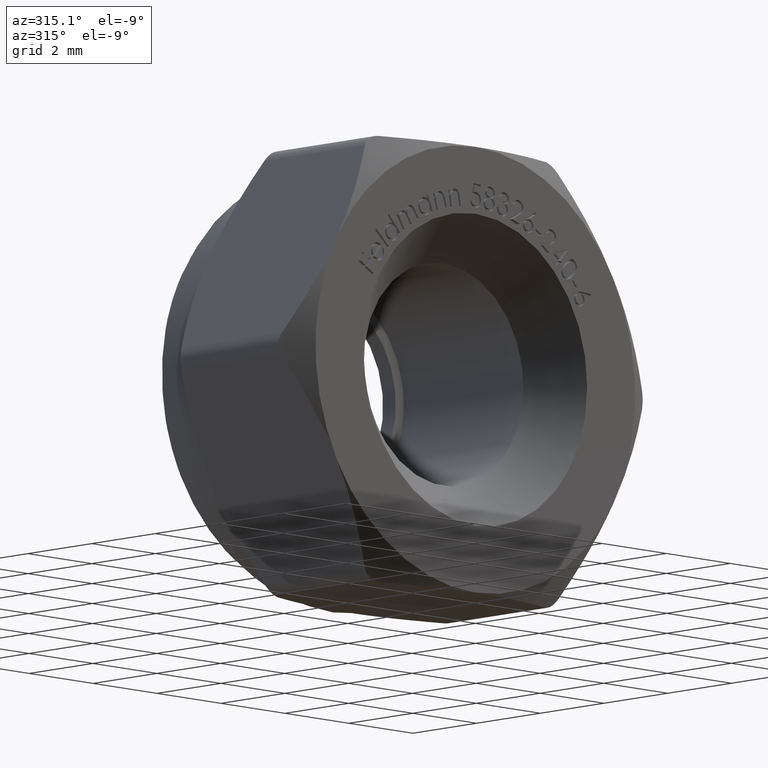
[diagram: clean part render]
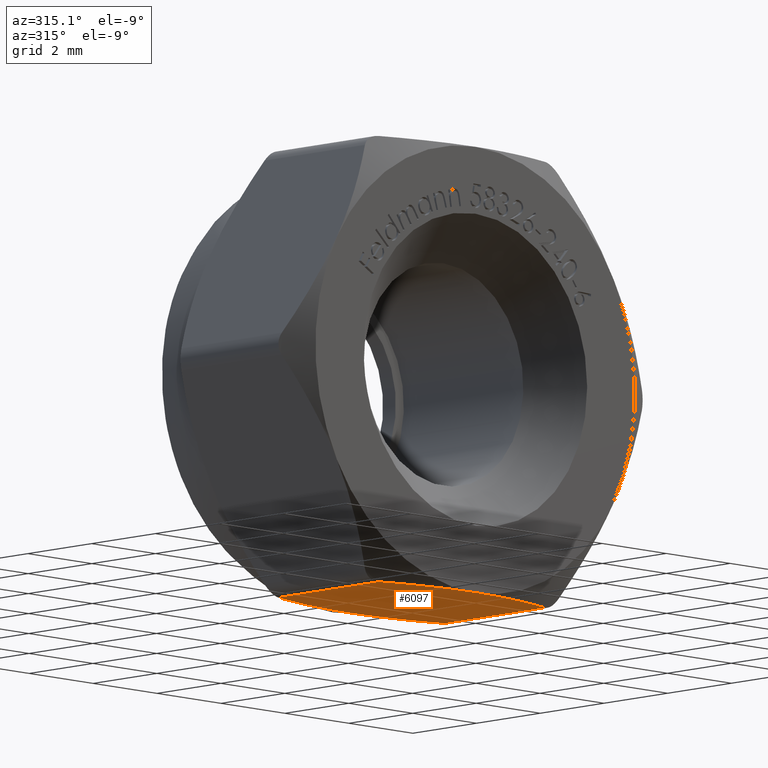
[diagram: same view with one face highlighted and labeled with its STEP entity id]
A machine part, auxiliary view. The second image highlights one B-rep face of the part: STEP entity #6097.
In plain terms, the highlighted planar face has unit normal (0, -0, 1).
Its self-contained STEP definition (entity closure, byte-faithful):
#75 = EDGE_CURVE ( 'NONE', #1935, #1849, #3418, .T. ) ;
#172 = CARTESIAN_POINT ( 'NONE',  ( 2.886751345948127767, 2.000000000000000000, -5.000000000000000888 ) ) ;
#239 = CARTESIAN_POINT ( 'NONE',  ( 0.8856942292477323342, 1.959694924800217786, -5.000000000000001776 ) ) ;
#370 = CARTESIAN_POINT ( 'NONE',  ( -2.598076211354216181, 1.576857443471507914, -5.000000000000000000 ) ) ;
#403 = LINE ( 'NONE', #12746, #8844 ) ;
#465 = VERTEX_POINT ( 'NONE', #13291 ) ;
#678 = VERTEX_POINT ( 'NONE', #13490 ) ;
#1001 = DIRECTION ( 'NONE',  ( -0.000000000000000000, 1.000000000000000000, -0.000000000000000000 ) ) ;
#1460 = CARTESIAN_POINT ( 'NONE',  ( -1.742681032027678878, 1.814396823001108050, -5.000000000000000888 ) ) ;
#1689 = DIRECTION ( 'NONE',  ( 0.000000000000000000, -1.000000000000000000, 0.000000000000000000 ) ) ;
#1849 = VERTEX_POINT ( 'NONE', #5128 ) ;
#1921 = B_SPLINE_CURVE_WITH_KNOTS ( 'NONE', 3,
 ( #8277, #4488, #9482, #8229, #3405, #4639 ),
 .UNSPECIFIED., .F., .F.,
 ( 4, 2, 4 ),
 ( 0.01631423711430525156, 0.01763462689384708709, 0.01895501667338892610 ),
 .UNSPECIFIED. ) ;
#1935 = VERTEX_POINT ( 'NONE', #2924 ) ;
#1985 = EDGE_CURVE ( 'NONE', #1849, #465, #1921, .T. ) ;
#2234 = CARTESIAN_POINT ( 'NONE',  ( -2.598076211354216181, 1.576857443471507914, -5.000000000000000000 ) ) ;
#2486 = DIRECTION ( 'NONE',  ( 1.502314598737160017E-16, -0.000000000000000000, 1.000000000000000000 ) ) ;
#2646 = PLANE ( 'NONE',  #12172 ) ;
#2924 = CARTESIAN_POINT ( 'NONE',  ( 2.598076211353314235, -1.576857443471785025, -5.000000000000000888 ) ) ;
#2970 = CARTESIAN_POINT ( 'NONE',  ( 2.598076211353314235, -1.576857443471785025, -5.000000000000000888 ) ) ;
#3405 = CARTESIAN_POINT ( 'NONE',  ( -2.174357090410401483, -1.707104172432572398, -5.000000000000000000 ) ) ;
#3418 = B_SPLINE_CURVE_WITH_KNOTS ( 'NONE', 3,
 ( #2970, #11332, #7795, #7678, #7627, #14951 ),
 .UNSPECIFIED., .F., .F.,
 ( 4, 2, 4 ),
 ( 0.01368210225960503693, 0.01499816968695514424, 0.01631423711430525156 ),
 .UNSPECIFIED. ) ;
#3461 = CARTESIAN_POINT ( 'NONE',  ( -2.598076211353315568, 2.000000000000000000, -5.000000000000000000 ) ) ;
#3787 = B_SPLINE_CURVE_WITH_KNOTS ( 'NONE', 3,
 ( #14797, #6340, #239, #12368, #5070, #7411 ),
 .UNSPECIFIED., .F., .F.,
 ( 4, 2, 4 ),
 ( 0.008294034842290857329, 0.009608449284890664688, 0.01092286372749047205 ),
 .UNSPECIFIED. ) ;
#4310 = ORIENTED_EDGE ( 'NONE', *, *, #75, .T. ) ;
#4372 = EDGE_CURVE ( 'NONE', #14081, #13684, #8087, .T. ) ;
#4488 = CARTESIAN_POINT ( 'NONE',  ( -0.4404535813904950636, -1.999999999999999556, -4.999999999999999112 ) ) ;
#4639 = CARTESIAN_POINT ( 'NONE',  ( -2.598076211354216181, -1.576857443471507914, -5.000000000000000000 ) ) ;
#5070 = CARTESIAN_POINT ( 'NONE',  ( 2.179175453458215728, 1.705623059131513131, -5.000000000000000888 ) ) ;
#5128 = CARTESIAN_POINT ( 'NONE',  ( -7.511572993685800087E-16, -2.000000000000000000, -5.000000000000000000 ) ) ;
#5265 = EDGE_CURVE ( 'NONE', #13684, #678, #3787, .T. ) ;
#5290 = EDGE_CURVE ( 'NONE', #678, #1935, #403, .T. ) ;
#5893 = EDGE_CURVE ( 'NONE', #465, #14081, #14179, .T. ) ;
#5899 = CARTESIAN_POINT ( 'NONE',  ( -7.511572993685800087E-16, 2.000000000000000000, -5.000000000000000000 ) ) ;
#6097 = ADVANCED_FACE ( 'NONE', ( #15340 ), #2646, .F. ) ;
#6340 = CARTESIAN_POINT ( 'NONE',  ( 0.4390117378285582350, 1.999999999999999556, -4.999999999999999112 ) ) ;
#7411 = CARTESIAN_POINT ( 'NONE',  ( 2.598076211353314235, 1.576857443471785025, -5.000000000000000888 ) ) ;
#7601 = CARTESIAN_POINT ( 'NONE',  ( -7.511572993685800087E-16, 2.000000000000000000, -5.000000000000000000 ) ) ;
#7627 = CARTESIAN_POINT ( 'NONE',  ( 0.4390117378285585681, -2.000000000000000000, -5.000000000000000000 ) ) ;
#7678 = CARTESIAN_POINT ( 'NONE',  ( 0.8856942292477320011, -1.959694924800216898, -5.000000000000000000 ) ) ;
#7795 = CARTESIAN_POINT ( 'NONE',  ( 1.754031736247770423, -1.811944446040656187, -5.000000000000000888 ) ) ;
#8087 = B_SPLINE_CURVE_WITH_KNOTS ( 'NONE', 3,
 ( #370, #10216, #1460, #13751, #10156, #7601 ),
 .UNSPECIFIED., .F., .F.,
 ( 4, 2, 4 ),
 ( 0.005656572110483166355, 0.006975303476387011842, 0.008294034842290857329 ),
 .UNSPECIFIED. ) ;
#8229 = CARTESIAN_POINT ( 'NONE',  ( -1.742681032027675325, -1.814396823001108272, -5.000000000000000000 ) ) ;
#8277 = CARTESIAN_POINT ( 'NONE',  ( -7.511572993685800087E-16, -2.000000000000000000, -5.000000000000000000 ) ) ;
#8464 = EDGE_LOOP ( 'NONE', ( #14028, #11670, #8920, #15269, #15029, #4310 ) ) ;
#8844 = VECTOR ( 'NONE', #1689, 1000.000000000000000 ) ;
#8920 = ORIENTED_EDGE ( 'NONE', *, *, #4372, .T. ) ;
#9482 = CARTESIAN_POINT ( 'NONE',  ( -0.8768523442111157973, -1.960666091942129485, -5.000000000000000888 ) ) ;
#10156 = CARTESIAN_POINT ( 'NONE',  ( -0.4404535813904957853, 1.999999999999999556, -5.000000000000000000 ) ) ;
#10216 = CARTESIAN_POINT ( 'NONE',  ( -2.174357090410402815, 1.707104172432571954, -4.999999999999999112 ) ) ;
#11332 = CARTESIAN_POINT ( 'NONE',  ( 2.179175453458215728, -1.705623059131513131, -5.000000000000000000 ) ) ;
#11670 = ORIENTED_EDGE ( 'NONE', *, *, #5893, .T. ) ;
#12172 = AXIS2_PLACEMENT_3D ( 'NONE', #172, #2486, #13437 ) ;
#12368 = CARTESIAN_POINT ( 'NONE',  ( 1.754031736247770645, 1.811944446040655743, -5.000000000000000000 ) ) ;
#12441 = VECTOR ( 'NONE', #1001, 1000.000000000000000 ) ;
#12746 = CARTESIAN_POINT ( 'NONE',  ( 2.598076211353314680, 2.000000000000000000, -5.000000000000000888 ) ) ;
#13291 = CARTESIAN_POINT ( 'NONE',  ( -2.598076211354216181, -1.576857443471507914, -5.000000000000000000 ) ) ;
#13437 = DIRECTION ( 'NONE',  ( 1.000000000000000000, 0.000000000000000000, -1.502314598737160017E-16 ) ) ;
#13490 = CARTESIAN_POINT ( 'NONE',  ( 2.598076211353314235, 1.576857443471785025, -5.000000000000000888 ) ) ;
#13684 = VERTEX_POINT ( 'NONE', #5899 ) ;
#13751 = CARTESIAN_POINT ( 'NONE',  ( -0.8768523442111179067, 1.960666091942129485, -5.000000000000000000 ) ) ;
#14028 = ORIENTED_EDGE ( 'NONE', *, *, #1985, .T. ) ;
#14081 = VERTEX_POINT ( 'NONE', #2234 ) ;
#14179 = LINE ( 'NONE', #3461, #12441 ) ;
#14797 = CARTESIAN_POINT ( 'NONE',  ( -7.511572993685800087E-16, 2.000000000000000000, -5.000000000000000000 ) ) ;
#14951 = CARTESIAN_POINT ( 'NONE',  ( -7.511572993685800087E-16, -2.000000000000000000, -5.000000000000000000 ) ) ;
#15029 = ORIENTED_EDGE ( 'NONE', *, *, #5290, .T. ) ;
#15269 = ORIENTED_EDGE ( 'NONE', *, *, #5265, .T. ) ;
#15340 = FACE_OUTER_BOUND ( 'NONE', #8464, .T. ) ;